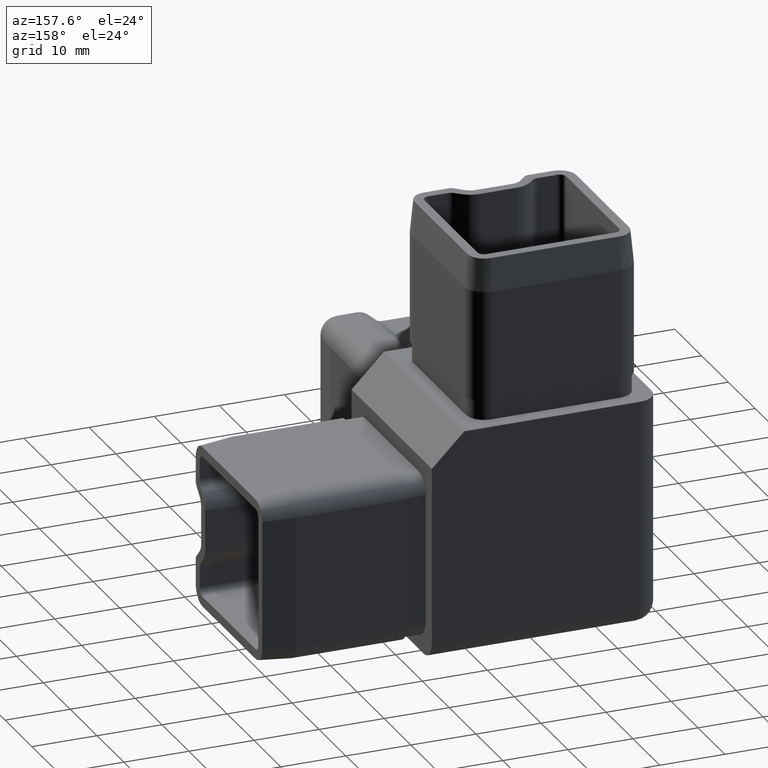
[diagram: clean part render]
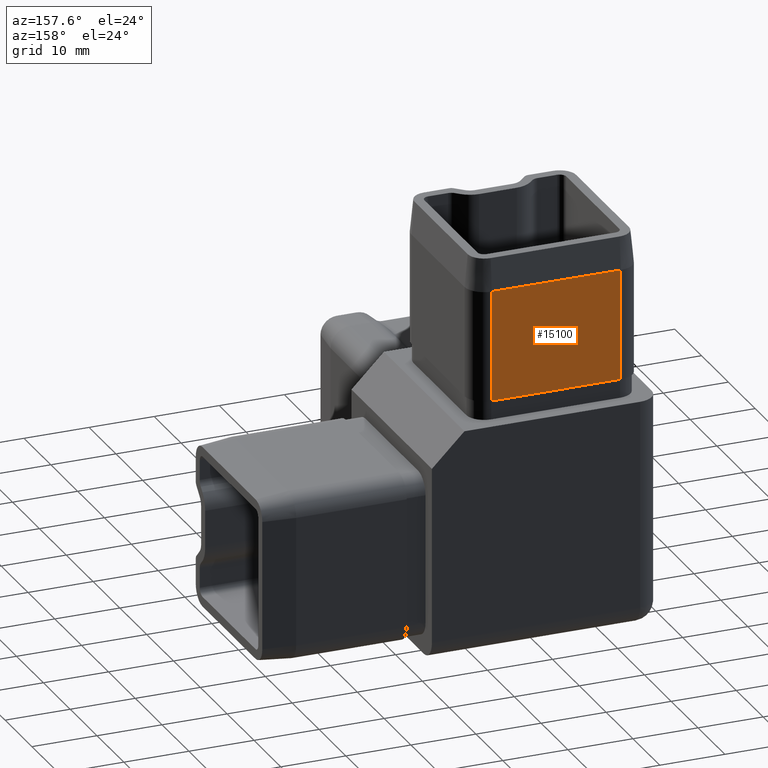
[diagram: same view with one face highlighted and labeled with its STEP entity id]
A machine part, auxiliary view. The second image highlights one B-rep face of the part: STEP entity #15100.
In plain terms, the highlighted planar face has unit normal (0, -1, 0).
Its self-contained STEP definition (entity closure, byte-faithful):
#218 = DIRECTION ( 'NONE',  ( 1.000000000000000000, 0.0000000000000000000, 0.0000000000000000000 ) ) ;
#427 = EDGE_CURVE ( 'NONE', #18470, #8730, #6930, .T. ) ;
#764 = EDGE_CURVE ( 'NONE', #1073, #11564, #5784, .T. ) ;
#1073 = VERTEX_POINT ( 'NONE', #12741 ) ;
#1574 = DIRECTION ( 'NONE',  ( 1.000000000000000000, 0.0000000000000000000, 0.0000000000000000000 ) ) ;
#1671 = CARTESIAN_POINT ( 'NONE',  ( -12.39999999999999700, 15.40000000000000400, 20.50000000000000400 ) ) ;
#1761 = VECTOR ( 'NONE', #4920, 1000.000000000000000 ) ;
#2285 = LINE ( 'NONE', #14974, #13208 ) ;
#2748 = VECTOR ( 'NONE', #1574, 1000.000000000000000 ) ;
#3369 = DIRECTION ( 'NONE',  ( 0.0000000000000000000, -1.000000000000000000, 0.0000000000000000000 ) ) ;
#4128 = VERTEX_POINT ( 'NONE', #12709 ) ;
#4345 = CARTESIAN_POINT ( 'NONE',  ( 3.469446951953614200E-015, 15.40000000000000200, 37.50000000000001400 ) ) ;
#4531 = CARTESIAN_POINT ( 'NONE',  ( -12.39999999999999900, 15.40000000000000200, 37.50000000000001400 ) ) ;
#4920 = DIRECTION ( 'NONE',  ( -0.0000000000000000000, -0.0000000000000000000, -1.000000000000000000 ) ) ;
#4971 = CARTESIAN_POINT ( 'NONE',  ( -12.40000000000000200, 15.40000000000000700, 42.50000000000000000 ) ) ;
#5784 = LINE ( 'NONE', #1671, #15744 ) ;
#6062 = ORIENTED_EDGE ( 'NONE', *, *, #764, .F. ) ;
#6361 = DIRECTION ( 'NONE',  ( 0.0000000000000000000, -0.0000000000000000000, -1.000000000000000000 ) ) ;
#6371 = CARTESIAN_POINT ( 'NONE',  ( -12.40000000000000200, 15.40000000000000700, 42.50000000000000000 ) ) ;
#6703 = LINE ( 'NONE', #13104, #13953 ) ;
#6930 = LINE ( 'NONE', #16732, #13726 ) ;
#7020 = ORIENTED_EDGE ( 'NONE', *, *, #12320, .T. ) ;
#7210 = CARTESIAN_POINT ( 'NONE',  ( 7.399999999999996800, 15.40000000000000700, 37.50000000000001400 ) ) ;
#7938 = EDGE_CURVE ( 'NONE', #17276, #11564, #6703, .T. ) ;
#8135 = DIRECTION ( 'NONE',  ( -1.000000000000000000, -0.0000000000000000000, -0.0000000000000000000 ) ) ;
#8681 = EDGE_LOOP ( 'NONE', ( #13303, #15145, #15566, #7020, #16752, #6062 ) ) ;
#8730 = VERTEX_POINT ( 'NONE', #4345 ) ;
#9220 = PLANE ( 'NONE',  #14020 ) ;
#10253 = CARTESIAN_POINT ( 'NONE',  ( 5.204170427930421300E-015, 15.40000000000000400, 20.50000000000000400 ) ) ;
#10372 = DIRECTION ( 'NONE',  ( -1.000000000000000000, -0.0000000000000000000, -0.0000000000000000000 ) ) ;
#11564 = VERTEX_POINT ( 'NONE', #10253 ) ;
#12132 = EDGE_CURVE ( 'NONE', #4128, #8730, #14327, .T. ) ;
#12320 = EDGE_CURVE ( 'NONE', #18470, #17276, #2285, .T. ) ;
#12709 = CARTESIAN_POINT ( 'NONE',  ( -12.39999999999999900, 15.40000000000000200, 37.50000000000001400 ) ) ;
#12741 = CARTESIAN_POINT ( 'NONE',  ( -12.39999999999999700, 15.40000000000000400, 20.50000000000000400 ) ) ;
#13098 = FACE_OUTER_BOUND ( 'NONE', #8681, .T. ) ;
#13104 = CARTESIAN_POINT ( 'NONE',  ( 7.399999999999996800, 15.40000000000000900, 20.50000000000000400 ) ) ;
#13208 = VECTOR ( 'NONE', #13642, 1000.000000000000000 ) ;
#13303 = ORIENTED_EDGE ( 'NONE', *, *, #13338, .F. ) ;
#13338 = EDGE_CURVE ( 'NONE', #4128, #1073, #18798, .T. ) ;
#13642 = DIRECTION ( 'NONE',  ( -0.0000000000000000000, -0.0000000000000000000, -1.000000000000000000 ) ) ;
#13726 = VECTOR ( 'NONE', #8135, 1000.000000000000000 ) ;
#13953 = VECTOR ( 'NONE', #10372, 1000.000000000000000 ) ;
#14020 = AXIS2_PLACEMENT_3D ( 'NONE', #4971, #3369, #6361 ) ;
#14327 = LINE ( 'NONE', #4531, #2748 ) ;
#14974 = CARTESIAN_POINT ( 'NONE',  ( 7.399999999999996800, 15.40000000000000700, 42.50000000000000000 ) ) ;
#15100 = ADVANCED_FACE ( 'NONE', ( #13098 ), #9220, .F. ) ;
#15145 = ORIENTED_EDGE ( 'NONE', *, *, #12132, .T. ) ;
#15475 = CARTESIAN_POINT ( 'NONE',  ( 7.399999999999996800, 15.40000000000000900, 20.50000000000000400 ) ) ;
#15566 = ORIENTED_EDGE ( 'NONE', *, *, #427, .F. ) ;
#15744 = VECTOR ( 'NONE', #218, 1000.000000000000000 ) ;
#16732 = CARTESIAN_POINT ( 'NONE',  ( 7.399999999999996800, 15.40000000000000700, 37.50000000000001400 ) ) ;
#16752 = ORIENTED_EDGE ( 'NONE', *, *, #7938, .T. ) ;
#17276 = VERTEX_POINT ( 'NONE', #15475 ) ;
#18470 = VERTEX_POINT ( 'NONE', #7210 ) ;
#18798 = LINE ( 'NONE', #6371, #1761 ) ;